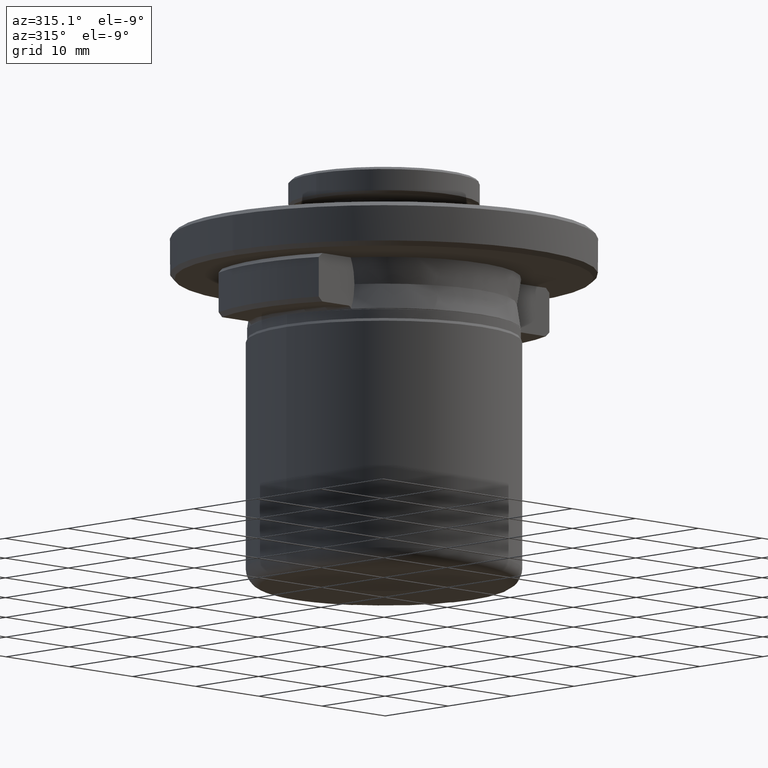
[diagram: clean part render]
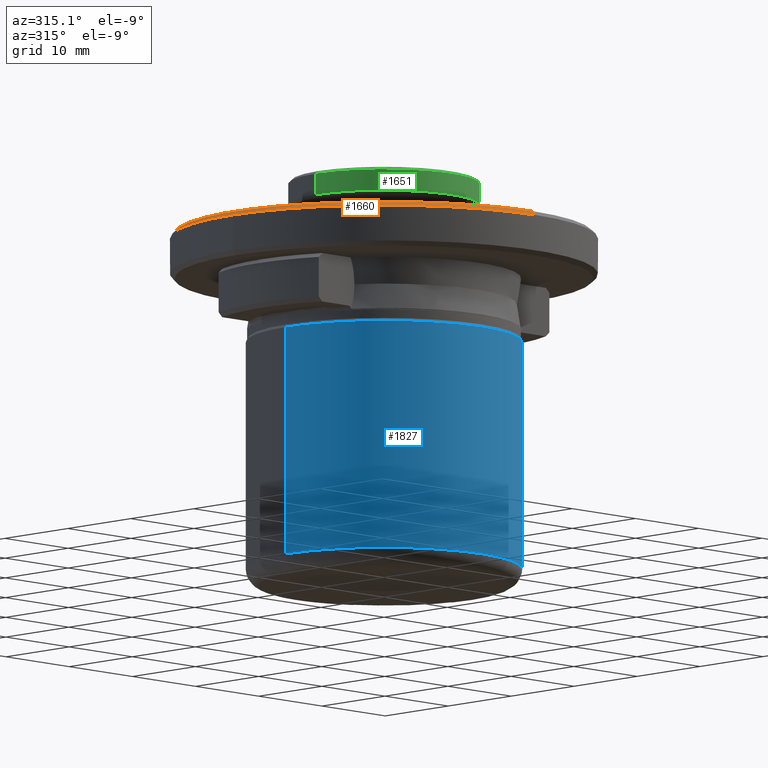
[diagram: same view with three faces highlighted in distinct colors, each labeled with its STEP entity id]
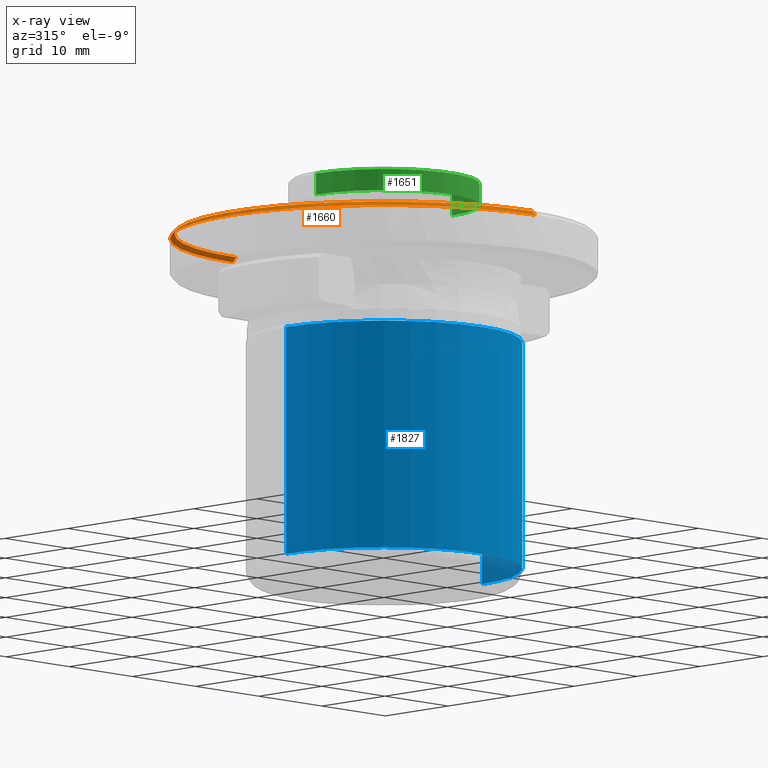
[diagram: x-ray of the same camera — body ghosted, the three highlighted faces saturated]
A machine part, auxiliary view with three faces highlighted in distinct colors.
The next image is the same camera in x-ray (body ghosted, the three faces saturated) — at least one of them is partly hidden behind the body in this view.
Their STEP definitions:

[orange] entity #1660 — the highlighted conical surface has half-angle 45 deg.
#57 = LINE ( 'NONE', #1360, #1577 ) ;
#65 = VERTEX_POINT ( 'NONE', #1446 ) ;
#192 = DIRECTION ( 'NONE',  ( -0.0000000000000000000, -0.0000000000000000000, 1.000000000000000000 ) ) ;
#295 = CIRCLE ( 'NONE', #656, 23.49999999999995000 ) ;
#352 = CARTESIAN_POINT ( 'NONE',  ( 0.0000000000000000000, 0.0000000000000000000, 11.93848561500000100 ) ) ;
#374 = AXIS2_PLACEMENT_3D ( 'NONE', #352, #192, #1242 ) ;
#464 = ORIENTED_EDGE ( 'NONE', *, *, #888, .F. ) ;
#471 = DIRECTION ( 'NONE',  ( 0.0000000000000000000, 1.000000000000000000, 0.0000000000000000000 ) ) ;
#503 = CONICAL_SURFACE ( 'NONE', #904, 23.50000000000000000, 0.7853981633974482800 ) ;
#577 = VERTEX_POINT ( 'NONE', #1279 ) ;
#617 = DIRECTION ( 'NONE',  ( -0.0000000000000000000, -0.0000000000000000000, 1.000000000000000000 ) ) ;
#623 = EDGE_CURVE ( 'NONE', #65, #835, #295, .T. ) ;
#628 = EDGE_CURVE ( 'NONE', #577, #1103, #1816, .T. ) ;
#656 = AXIS2_PLACEMENT_3D ( 'NONE', #1139, #1639, #1833 ) ;
#725 = CARTESIAN_POINT ( 'NONE',  ( 0.0000000000000000000, 24.00000000000000000, 11.93848561500000100 ) ) ;
#753 = AXIS2_PLACEMENT_3D ( 'NONE', #1435, #617, #1569 ) ;
#794 = VERTEX_POINT ( 'NONE', #725 ) ;
#823 = CARTESIAN_POINT ( 'NONE',  ( 2.908536147974961000E-015, -23.49999999999995000, 12.43848561500005100 ) ) ;
#835 = VERTEX_POINT ( 'NONE', #823 ) ;
#888 = EDGE_CURVE ( 'NONE', #835, #1103, #1677, .T. ) ;
#904 = AXIS2_PLACEMENT_3D ( 'NONE', #1635, #1345, #471 ) ;
#977 = DIRECTION ( 'NONE',  ( 8.659560562354931600E-017, -0.7071067811865474600, -0.7071067811865475700 ) ) ;
#985 = FACE_OUTER_BOUND ( 'NONE', #1127, .T. ) ;
#1103 = VERTEX_POINT ( 'NONE', #1460 ) ;
#1127 = EDGE_LOOP ( 'NONE', ( #464, #1429, #1192, #1809, #1893 ) ) ;
#1139 = CARTESIAN_POINT ( 'NONE',  ( 0.0000000000000000000, 1.792753937581369100E-030, 12.43848561500005100 ) ) ;
#1192 = ORIENTED_EDGE ( 'NONE', *, *, #1403, .T. ) ;
#1220 = DIRECTION ( 'NONE',  ( 0.0000000000000000000, 0.7071067811865474600, -0.7071067811865475700 ) ) ;
#1242 = DIRECTION ( 'NONE',  ( -1.000000000000000000, 0.0000000000000000000, 0.0000000000000000000 ) ) ;
#1279 = CARTESIAN_POINT ( 'NONE',  ( -24.00000000000000000, 0.0000000000000000000, 11.93848561500000100 ) ) ;
#1345 = DIRECTION ( 'NONE',  ( 0.0000000000000000000, -3.690901012716610800E-017, -1.000000000000000000 ) ) ;
#1360 = CARTESIAN_POINT ( 'NONE',  ( 0.0000000000000000000, 23.50000000000000000, 12.43848561500000100 ) ) ;
#1403 = EDGE_CURVE ( 'NONE', #65, #794, #57, .T. ) ;
#1410 = CARTESIAN_POINT ( 'NONE',  ( 2.877919977996280300E-015, -23.50000000000000000, 12.43848561500000100 ) ) ;
#1429 = ORIENTED_EDGE ( 'NONE', *, *, #623, .F. ) ;
#1435 = CARTESIAN_POINT ( 'NONE',  ( 0.0000000000000000000, 0.0000000000000000000, 11.93848561500000100 ) ) ;
#1444 = VECTOR ( 'NONE', #977, 1000.000000000000000 ) ;
#1446 = CARTESIAN_POINT ( 'NONE',  ( 0.0000000000000000000, 23.49999999999995000, 12.43848561500005100 ) ) ;
#1460 = CARTESIAN_POINT ( 'NONE',  ( 2.939152317953647900E-015, -24.00000000000000000, 11.93848561500000100 ) ) ;
#1569 = DIRECTION ( 'NONE',  ( -1.000000000000000000, 0.0000000000000000000, 0.0000000000000000000 ) ) ;
#1577 = VECTOR ( 'NONE', #1220, 1000.000000000000000 ) ;
#1635 = CARTESIAN_POINT ( 'NONE',  ( 0.0000000000000000000, 0.0000000000000000000, 12.43848561500000100 ) ) ;
#1639 = DIRECTION ( 'NONE',  ( -0.0000000000000000000, 3.690901012716610800E-017, 1.000000000000000000 ) ) ;
#1660 = ADVANCED_FACE ( 'NONE', ( #985 ), #503, .T. ) ;
#1677 = LINE ( 'NONE', #1410, #1444 ) ;
#1786 = EDGE_CURVE ( 'NONE', #794, #577, #1922, .T. ) ;
#1809 = ORIENTED_EDGE ( 'NONE', *, *, #1786, .T. ) ;
#1816 = CIRCLE ( 'NONE', #753, 24.00000000000000000 ) ;
#1833 = DIRECTION ( 'NONE',  ( 0.0000000000000000000, 1.000000000000000000, 0.0000000000000000000 ) ) ;
#1893 = ORIENTED_EDGE ( 'NONE', *, *, #628, .T. ) ;
#1922 = CIRCLE ( 'NONE', #374, 24.00000000000000000 ) ;

[blue] entity #1827 — the highlighted cylindrical surface (partial cylindrical patch) has radius 15.5 mm, axis along (0, -0, 1).
#3 = EDGE_CURVE ( 'NONE', #8, #1673, #1411, .T. ) ;
#8 = VERTEX_POINT ( 'NONE', #242 ) ;
#22 = VECTOR ( 'NONE', #1058, 1000.000000000000000 ) ;
#135 = VERTEX_POINT ( 'NONE', #967 ) ;
#231 = CARTESIAN_POINT ( 'NONE',  ( 15.50000000000000000, 0.0000000000000000000, -18.26487427900000100 ) ) ;
#242 = CARTESIAN_POINT ( 'NONE',  ( 15.50000000000000000, 0.0000000000000000000, -25.56151438499999900 ) ) ;
#273 = DIRECTION ( 'NONE',  ( 0.0000000000000000000, -0.0000000000000000000, 1.000000000000000000 ) ) ;
#286 = CIRCLE ( 'NONE', #514, 15.50000000000000000 ) ;
#377 = EDGE_CURVE ( 'NONE', #1298, #135, #1215, .T. ) ;
#421 = EDGE_CURVE ( 'NONE', #1298, #8, #719, .T. ) ;
#514 = AXIS2_PLACEMENT_3D ( 'NONE', #603, #1797, #1107 ) ;
#603 = CARTESIAN_POINT ( 'NONE',  ( 0.0000000000000000000, 0.0000000000000000000, 0.1784856150000013700 ) ) ;
#607 = CARTESIAN_POINT ( 'NONE',  ( -15.50000000000000000, 1.898202538678397600E-015, -25.56151438499999900 ) ) ;
#664 = CARTESIAN_POINT ( 'NONE',  ( 0.0000000000000000000, 0.0000000000000000000, -18.26487427900000100 ) ) ;
#666 = DIRECTION ( 'NONE',  ( 1.000000000000000000, 0.0000000000000000000, 0.0000000000000000000 ) ) ;
#719 = CIRCLE ( 'NONE', #1288, 15.50000000000000000 ) ;
#818 = EDGE_LOOP ( 'NONE', ( #1693, #971, #1822, #1570 ) ) ;
#889 = CARTESIAN_POINT ( 'NONE',  ( -15.50000000000000000, 1.898202538678397600E-015, -18.26487427900000100 ) ) ;
#967 = CARTESIAN_POINT ( 'NONE',  ( -15.50000000000000000, 1.898202538678397600E-015, 0.1784856150000013700 ) ) ;
#971 = ORIENTED_EDGE ( 'NONE', *, *, #421, .T. ) ;
#1001 = CARTESIAN_POINT ( 'NONE',  ( 0.0000000000000000000, 0.0000000000000000000, -25.56151438499999900 ) ) ;
#1027 = VECTOR ( 'NONE', #273, 1000.000000000000000 ) ;
#1058 = DIRECTION ( 'NONE',  ( 0.0000000000000000000, -0.0000000000000000000, 1.000000000000000000 ) ) ;
#1059 = CARTESIAN_POINT ( 'NONE',  ( 15.50000000000000000, 0.0000000000000000000, 0.1784856150000013700 ) ) ;
#1105 = FACE_OUTER_BOUND ( 'NONE', #818, .T. ) ;
#1107 = DIRECTION ( 'NONE',  ( -1.000000000000000000, 0.0000000000000000000, -8.743565907141165300E-017 ) ) ;
#1215 = LINE ( 'NONE', #889, #22 ) ;
#1288 = AXIS2_PLACEMENT_3D ( 'NONE', #1001, #1841, #666 ) ;
#1298 = VERTEX_POINT ( 'NONE', #607 ) ;
#1359 = AXIS2_PLACEMENT_3D ( 'NONE', #664, #1672, #1546 ) ;
#1395 = CYLINDRICAL_SURFACE ( 'NONE', #1359, 15.50000000000000000 ) ;
#1411 = LINE ( 'NONE', #231, #1027 ) ;
#1546 = DIRECTION ( 'NONE',  ( 1.000000000000000000, 0.0000000000000000000, 0.0000000000000000000 ) ) ;
#1570 = ORIENTED_EDGE ( 'NONE', *, *, #1594, .T. ) ;
#1594 = EDGE_CURVE ( 'NONE', #1673, #135, #286, .T. ) ;
#1672 = DIRECTION ( 'NONE',  ( 0.0000000000000000000, -0.0000000000000000000, 1.000000000000000000 ) ) ;
#1673 = VERTEX_POINT ( 'NONE', #1059 ) ;
#1693 = ORIENTED_EDGE ( 'NONE', *, *, #377, .F. ) ;
#1797 = DIRECTION ( 'NONE',  ( 0.0000000000000000000, 0.0000000000000000000, -1.000000000000000000 ) ) ;
#1822 = ORIENTED_EDGE ( 'NONE', *, *, #3, .T. ) ;
#1827 = ADVANCED_FACE ( 'NONE', ( #1105 ), #1395, .T. ) ;
#1841 = DIRECTION ( 'NONE',  ( 0.0000000000000000000, 0.0000000000000000000, 1.000000000000000000 ) ) ;

[green] entity #1651 — the highlighted cylindrical surface (partial cylindrical patch) has radius 10.75 mm, axis along (0, 0, -1).
#4 = DIRECTION ( 'NONE',  ( -1.000000000000000000, 0.0000000000000000000, 0.0000000000000000000 ) ) ;
#24 = VERTEX_POINT ( 'NONE', #1097 ) ;
#72 = CARTESIAN_POINT ( 'NONE',  ( -10.75000000000000000, 0.0000000000000000000, 18.13848561500000400 ) ) ;
#107 = AXIS2_PLACEMENT_3D ( 'NONE', #1050, #1839, #665 ) ;
#175 = LINE ( 'NONE', #1548, #923 ) ;
#190 = FACE_OUTER_BOUND ( 'NONE', #632, .T. ) ;
#342 = CARTESIAN_POINT ( 'NONE',  ( -10.75000000000000000, 0.0000000000000000000, 18.13848561500000400 ) ) ;
#348 = EDGE_CURVE ( 'NONE', #1764, #24, #566, .T. ) ;
#354 = VERTEX_POINT ( 'NONE', #1737 ) ;
#400 = ORIENTED_EDGE ( 'NONE', *, *, #1000, .F. ) ;
#547 = CYLINDRICAL_SURFACE ( 'NONE', #1109, 10.75000000000000000 ) ;
#566 = LINE ( 'NONE', #72, #1644 ) ;
#615 = DIRECTION ( 'NONE',  ( 1.000000000000000000, 0.0000000000000000000, 8.391220534957578000E-015 ) ) ;
#632 = EDGE_LOOP ( 'NONE', ( #400, #1449, #1913, #1116 ) ) ;
#640 = CIRCLE ( 'NONE', #107, 10.75000000000000000 ) ;
#665 = DIRECTION ( 'NONE',  ( -1.000000000000000000, 0.0000000000000000000, 0.0000000000000000000 ) ) ;
#692 = DIRECTION ( 'NONE',  ( 0.0000000000000000000, 0.0000000000000000000, -1.000000000000000000 ) ) ;
#759 = DIRECTION ( 'NONE',  ( 0.0000000000000000000, 0.0000000000000000000, 1.000000000000000000 ) ) ;
#837 = AXIS2_PLACEMENT_3D ( 'NONE', #1638, #759, #615 ) ;
#901 = CARTESIAN_POINT ( 'NONE',  ( 0.0000000000000000000, 0.0000000000000000000, 18.13848561500000400 ) ) ;
#923 = VECTOR ( 'NONE', #692, 1000.000000000000000 ) ;
#1000 = EDGE_CURVE ( 'NONE', #354, #1160, #175, .T. ) ;
#1050 = CARTESIAN_POINT ( 'NONE',  ( 0.0000000000000000000, 0.0000000000000000000, 18.13848561500000400 ) ) ;
#1097 = CARTESIAN_POINT ( 'NONE',  ( -10.75000000000000000, 0.0000000000000000000, 15.73848561499991000 ) ) ;
#1109 = AXIS2_PLACEMENT_3D ( 'NONE', #901, #1470, #4 ) ;
#1116 = ORIENTED_EDGE ( 'NONE', *, *, #1320, .T. ) ;
#1160 = VERTEX_POINT ( 'NONE', #1188 ) ;
#1188 = CARTESIAN_POINT ( 'NONE',  ( 10.75000000000000000, 1.316495309083404800E-015, 15.73848561499991000 ) ) ;
#1198 = DIRECTION ( 'NONE',  ( 0.0000000000000000000, 0.0000000000000000000, -1.000000000000000000 ) ) ;
#1320 = EDGE_CURVE ( 'NONE', #24, #1160, #1719, .T. ) ;
#1449 = ORIENTED_EDGE ( 'NONE', *, *, #1591, .F. ) ;
#1470 = DIRECTION ( 'NONE',  ( 0.0000000000000000000, 0.0000000000000000000, -1.000000000000000000 ) ) ;
#1548 = CARTESIAN_POINT ( 'NONE',  ( 10.75000000000000000, 1.316495309083404800E-015, 18.13848561500000400 ) ) ;
#1591 = EDGE_CURVE ( 'NONE', #1764, #354, #640, .T. ) ;
#1638 = CARTESIAN_POINT ( 'NONE',  ( 0.0000000000000000000, 0.0000000000000000000, 15.73848561499991000 ) ) ;
#1644 = VECTOR ( 'NONE', #1198, 1000.000000000000000 ) ;
#1651 = ADVANCED_FACE ( 'NONE', ( #190 ), #547, .T. ) ;
#1719 = CIRCLE ( 'NONE', #837, 10.75000000000000000 ) ;
#1737 = CARTESIAN_POINT ( 'NONE',  ( 10.75000000000000000, 1.316495309083404800E-015, 18.13848561500000400 ) ) ;
#1764 = VERTEX_POINT ( 'NONE', #342 ) ;
#1839 = DIRECTION ( 'NONE',  ( -0.0000000000000000000, -0.0000000000000000000, 1.000000000000000000 ) ) ;
#1913 = ORIENTED_EDGE ( 'NONE', *, *, #348, .T. ) ;